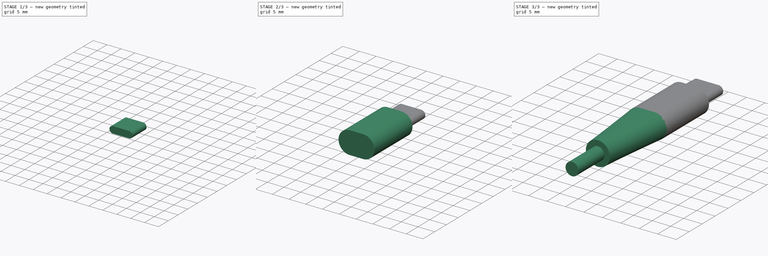
[diagram: build sequence overview — one tinted view per stage of 3, left to right]
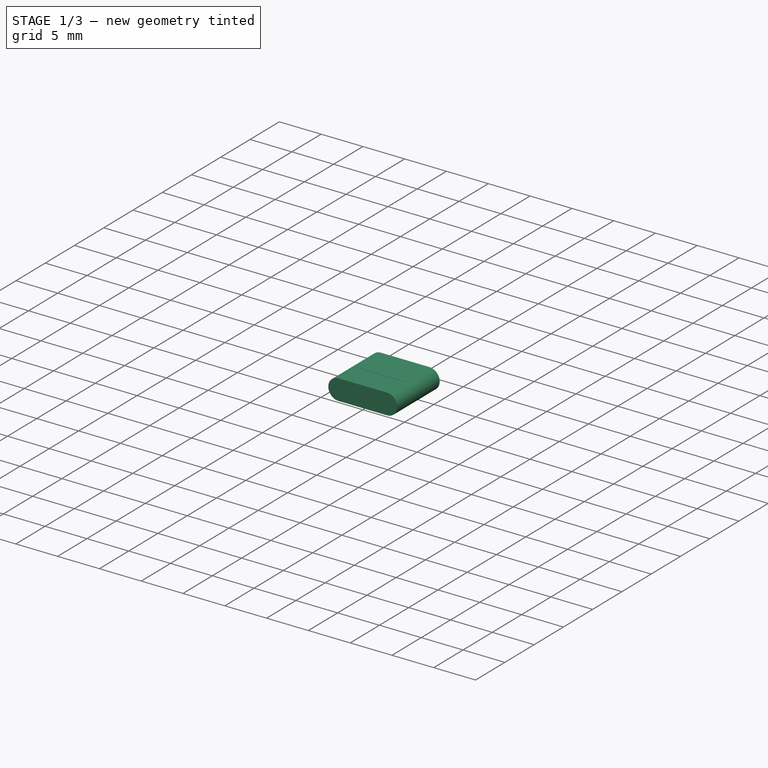
[diagram: stage 1 of 3 — iso view after this stage's code; geometry added in this stage tinted green]
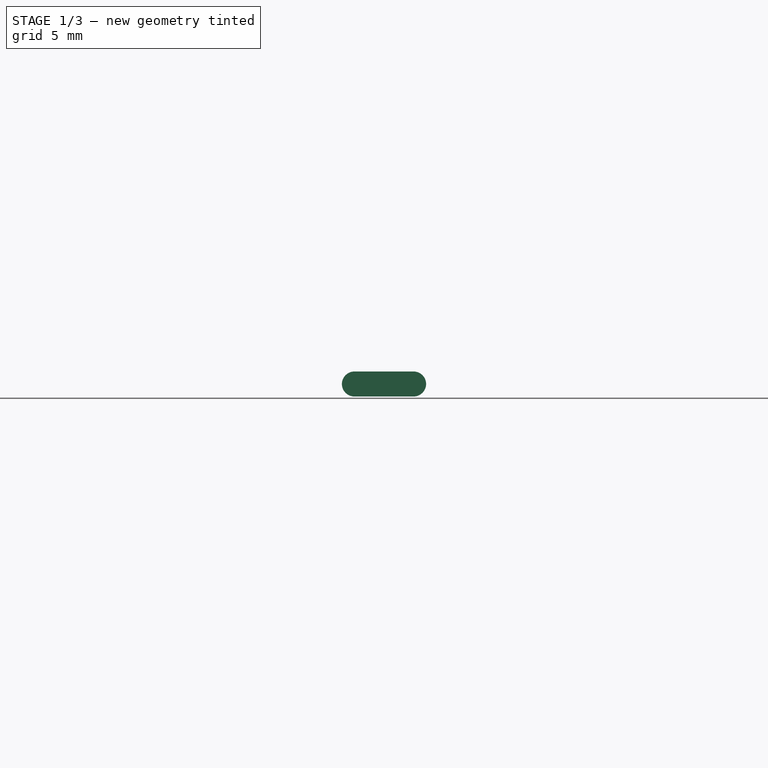
[diagram: stage 1 of 3 — front view after this stage's code; geometry added in this stage tinted green]
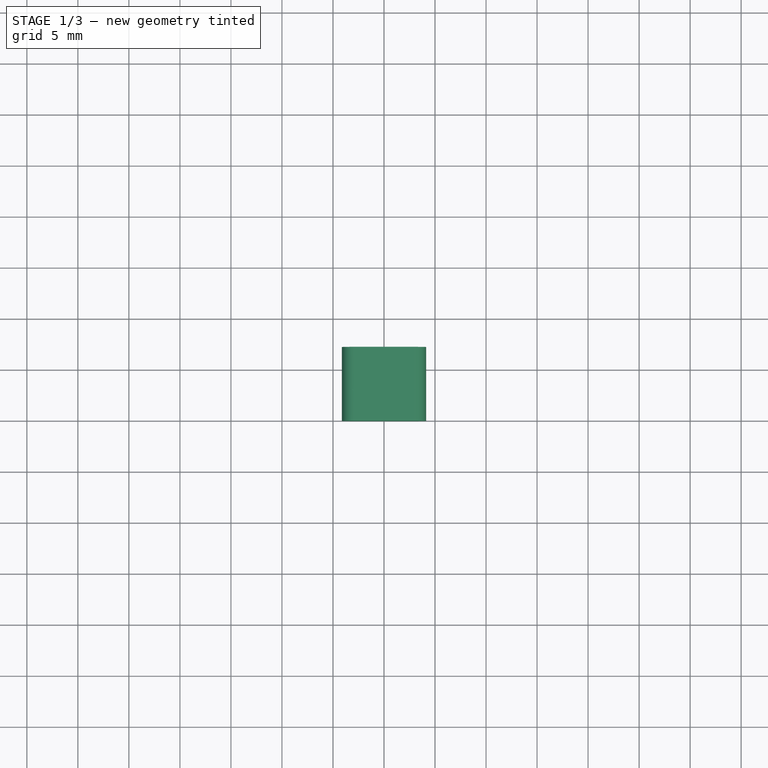
[diagram: stage 1 of 3 — top view after this stage's code; geometry added in this stage tinted green]
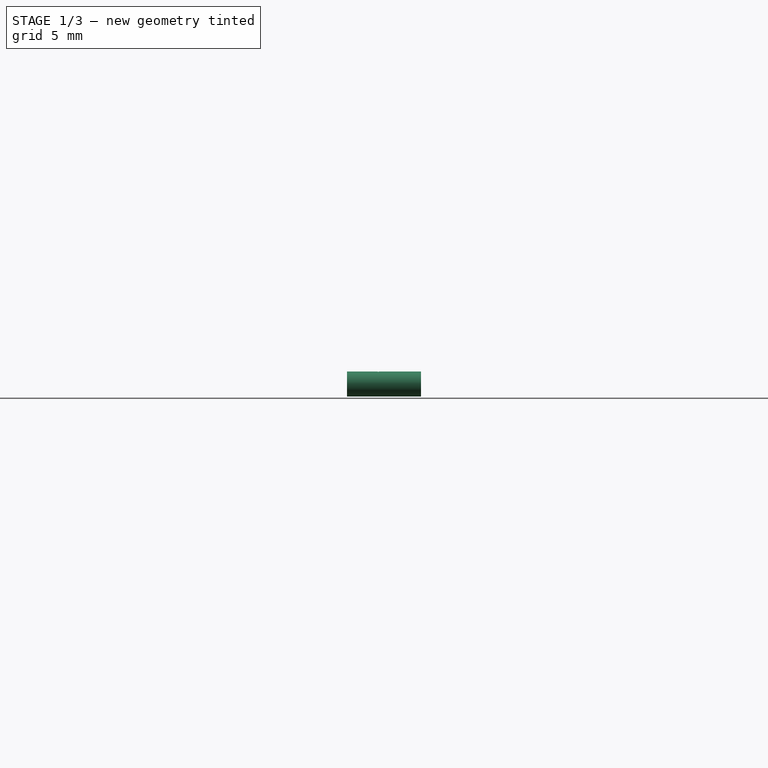
[diagram: stage 1 of 3 — right view after this stage's code; geometry added in this stage tinted green]
FCSTD DOCUMENT  (FreeCAD 0.19R24276 (Git))
Label: Std_USB_C_CableEnd
License: All rights reserved
LicenseURL: http://en.wikipedia.org/wiki/All_rights_reserved
objects: Sketcher::SketchObject×6, PartDesign::Pad×3, PartDesign::Plane×2, PartDesign::Body×2, PartDesign::AdditiveLoft×1, PartDesign::Pocket×1, App::Part×1
note: 20 computed .brp shape members not serialized (recipe doc carries the construction recipe); baked Part::Feature solids carry a one-line shape summary decoded from their .brp

FEATURE [PartDesign::Body] Body  label="Std_USBC_Cable"
  Group = -> [Sketch,Pad,DatumPlane,Sketch001,DatumPlane001,Sketch002,AdditiveLoft,Sketch003,Pad001]
  Origin = -> Origin001
  Tip = -> Pad001
FEATURE [Sketcher::SketchObject] Sketch005
  FullyConstrained = true
  MapMode = 5
  Placement = pos=(0,0,0) rot=(1,0,0;1.5708rad)
  Support = -> [XZ_Plane002]
  sketch-geometry (6):
    g0: ArcOfCircle CenterX=-2.9 CenterY=0 CenterZ=0 NormalX=0 NormalY=0 NormalZ=1 AngleXU=0 Radius=1.225 StartAngle=1.5708 EndAngle=4.71239
    g1: ArcOfCircle CenterX=2.9 CenterY=0 CenterZ=0 NormalX=0 NormalY=0 NormalZ=1 AngleXU=0 Radius=1.225 StartAngle=4.71239 EndAngle=7.85398
    g2: LineSegment StartX=-2.9 StartY=-1.225 StartZ=0 EndX=2.9 EndY=-1.225 EndZ=0
    g3: LineSegment StartX=-2.9 StartY=1.225 StartZ=0 EndX=2.9 EndY=1.225 EndZ=0
    g4: GeomPoint X=-4.125 Y=0 Z=0
    g5: GeomPoint X=4.125 Y=0 Z=0
  constraints (13):
    c: Tangent(g0,g3) = 1.5708
    c: Tangent(g0,g2) = -1.5708
    c: Tangent(g2,g1) = -1.5708
    c: Tangent(g3,g1) = 1.5708
    c: Horizontal(g2)
    c: Equal(g0,g1)
    c: Symmetric(g0,g1,g-1)
    c: DistanceY(g1,g1) = 2.45
    c: PointOnObject(g4,g-1)
    c: PointOnObject(g5,g-1)
    c: PointOnObject(g5,g1)
    c: PointOnObject(g4,g0)
    c: DistanceX(g4,g5) = 8.25
FEATURE [PartDesign::Pad] Pad002
  Direction = (1,1,1)
  Length = 7.25
  Length2 = 100
  Placement = pos=(0,0,0) rot=(1,0,0;1.5708rad)
  Profile = -> Sketch005
  Reversed = true
  Type = 0
FEATURE [Sketcher::SketchObject] Sketch006
  FullyConstrained = true
  MapMode = 5
  Placement = pos=(0,0,0) rot=(0.57735,0.57735,0.57735;2.0944rad)
  Support = -> [YZ_Plane002]
  sketch-geometry (4):
    g0: LineSegment StartX=3 StartY=11.2 StartZ=0 EndX=3.1 EndY=11.2 EndZ=0
    g1: LineSegment StartX=3.1 StartY=11.2 StartZ=0 EndX=3.1 EndY=1.2 EndZ=0
    g2: LineSegment StartX=3.1 StartY=1.2 StartZ=0 EndX=3 EndY=1.2 EndZ=0
    g3: LineSegment StartX=3 StartY=1.2 StartZ=0 EndX=3 EndY=11.2 EndZ=0
  constraints (12):
    c: Coincident(g0,g1)
    c: Coincident(g1,g2)
    c: Coincident(g2,g3)
    c: Coincident(g3,g0)
    c: Horizontal(g0)
    c: Horizontal(g2)
    c: Vertical(g1)
    c: Vertical(g3)
    c: DistanceX(g0,g0) = 0.1
    c: DistanceX(g-1,g2) = 3
    c: DistanceY(g-1,g2) = 1.2
    c: DistanceY(g1,g1) = 10
FEATURE [PartDesign::Pocket] Pocket
  BaseFeature = -> Pad002
  Length = 5
  Length2 = 100
  Midplane = true
  Placement = pos=(0,0,0) rot=(1,0,0;1.5708rad)
  Profile = -> Sketch006
  Type = 1
FEATURE [PartDesign::Body] Body001  label="Std_USBC_Connector"
  Group = -> [Sketch005,Pad002,Sketch006,Pocket]
  Origin = -> Origin002
  Tip = -> Pocket
FEATURE [App::Part] Part  label="Part_Std_USBC_Cable"
  Group = -> [Body,Body001]
  Origin = -> Origin
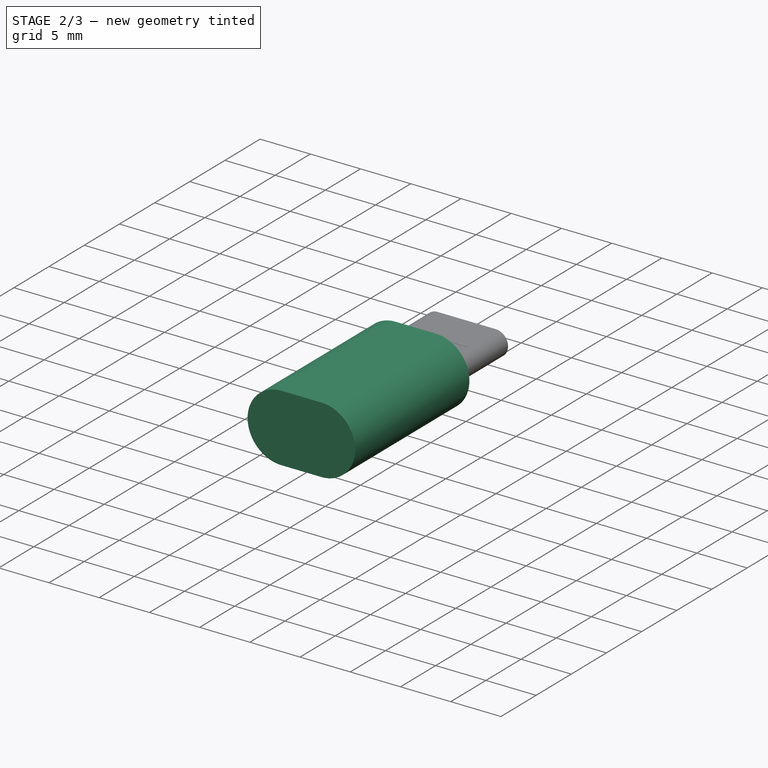
[diagram: stage 2 of 3 — iso view after this stage's code; geometry added in this stage tinted green]
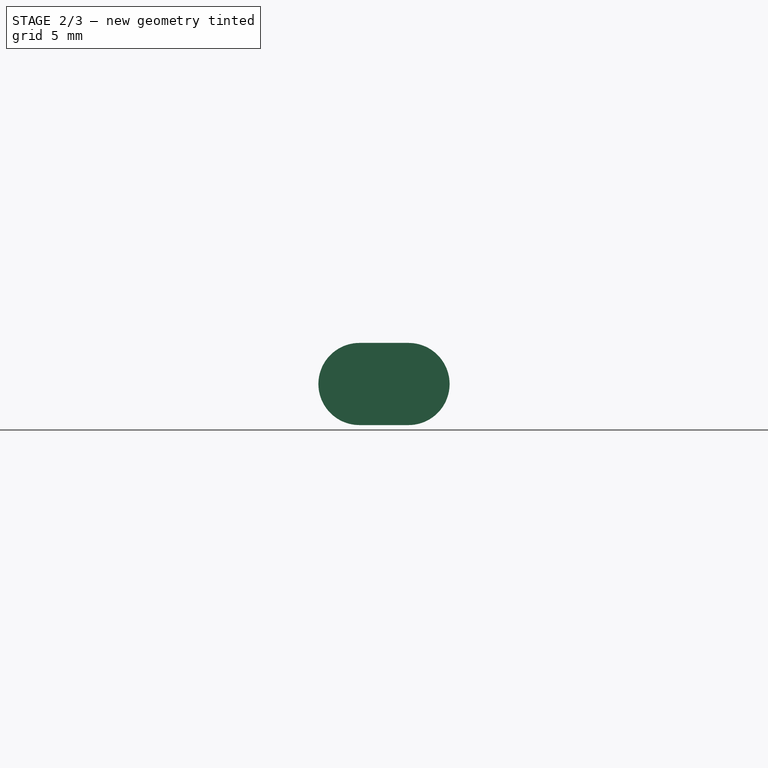
[diagram: stage 2 of 3 — front view after this stage's code; geometry added in this stage tinted green]
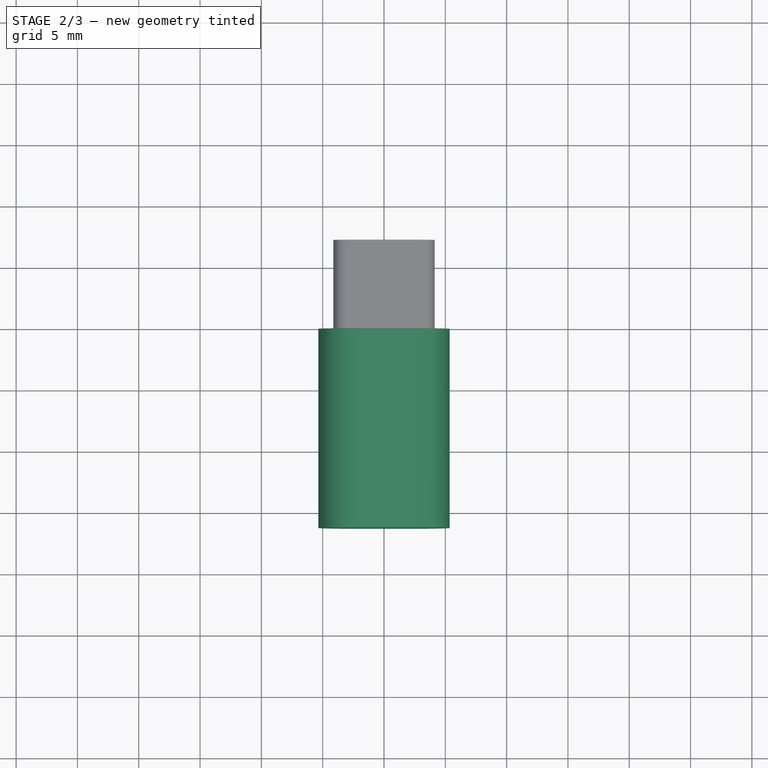
[diagram: stage 2 of 3 — top view after this stage's code; geometry added in this stage tinted green]
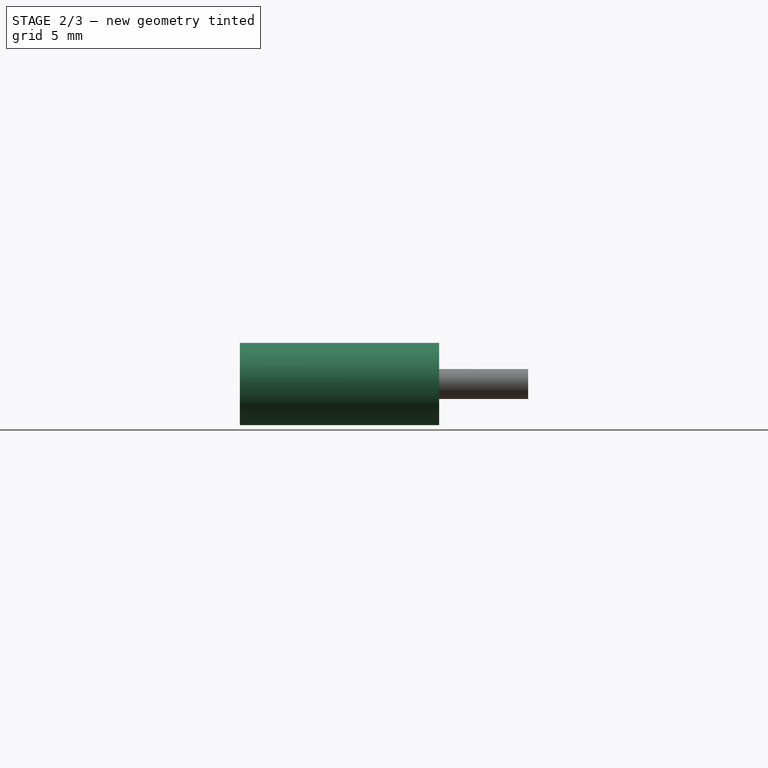
[diagram: stage 2 of 3 — right view after this stage's code; geometry added in this stage tinted green]
FEATURE [Sketcher::SketchObject] Sketch
  FullyConstrained = true
  MapMode = 5
  Placement = pos=(0,0,0) rot=(1,0,0;1.5708rad)
  Support = -> [XZ_Plane001]
  sketch-geometry (6):
    g0: ArcOfCircle CenterX=-2 CenterY=0 CenterZ=0 NormalX=0 NormalY=0 NormalZ=1 AngleXU=0 Radius=3.35 StartAngle=1.5708 EndAngle=4.71239
    g1: ArcOfCircle CenterX=2 CenterY=0 CenterZ=0 NormalX=0 NormalY=0 NormalZ=1 AngleXU=0 Radius=3.35 StartAngle=4.71239 EndAngle=7.85398
    g2: LineSegment StartX=-2 StartY=-3.35 StartZ=0 EndX=2 EndY=-3.35 EndZ=0
    g3: LineSegment StartX=-2 StartY=3.35 StartZ=0 EndX=2 EndY=3.35 EndZ=0
    g4: GeomPoint X=-5.35 Y=0 Z=0
    g5: GeomPoint X=5.35 Y=0 Z=0
  constraints (13):
    c: Tangent(g0,g3) = 1.5708
    c: Tangent(g0,g2) = -1.5708
    c: Tangent(g2,g1) = -1.5708
    c: Tangent(g3,g1) = 1.5708
    c: Horizontal(g2)
    c: Equal(g0,g1)
    c: Symmetric(g0,g1,g-1)
    c: PointOnObject(g4,g-1)
    c: PointOnObject(g5,g-1)
    c: PointOnObject(g5,g1)
    c: PointOnObject(g4,g0)
    c: DistanceY(g1,g1) = 6.7
    c: DistanceX(g4,g5) = 10.7
FEATURE [PartDesign::Pad] Pad
  Direction = (1,1,1)
  Length = 16.25
  Length2 = 100
  Placement = pos=(0,0,0) rot=(1,0,0;1.5708rad)
  Profile = -> Sketch
  Type = 0
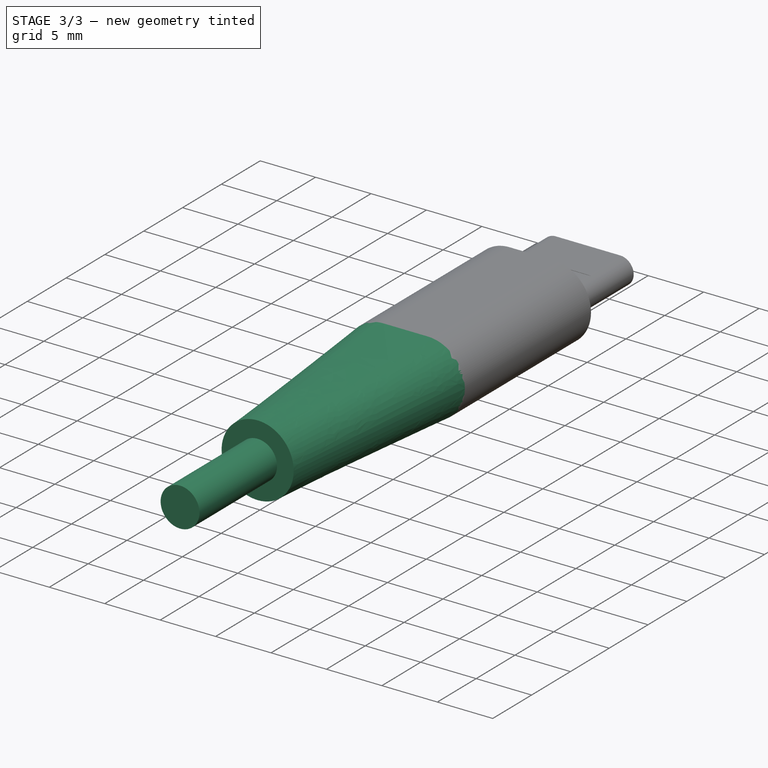
[diagram: stage 3 of 3 — iso view after this stage's code; geometry added in this stage tinted green]
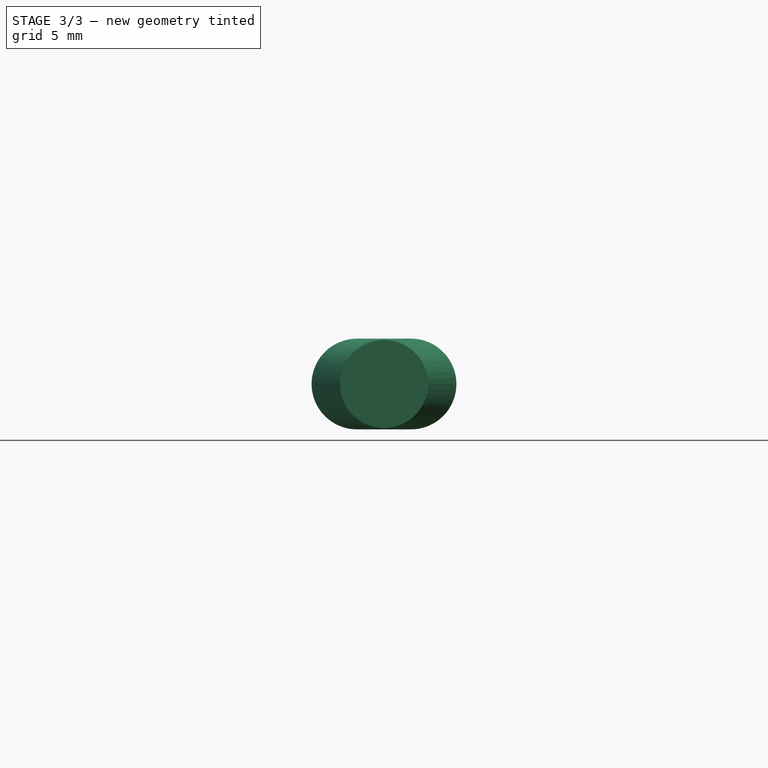
[diagram: stage 3 of 3 — front view after this stage's code; geometry added in this stage tinted green]
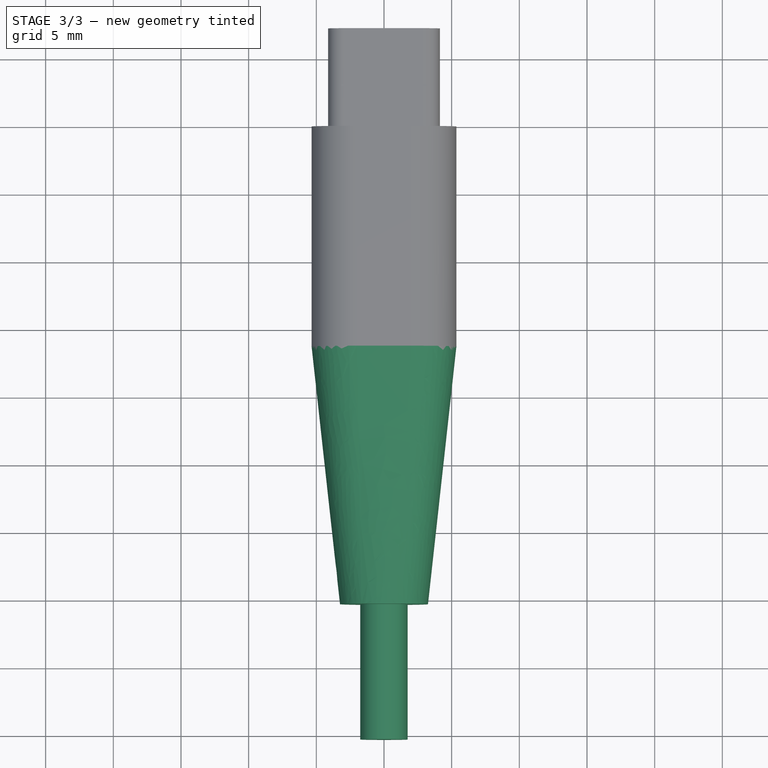
[diagram: stage 3 of 3 — top view after this stage's code; geometry added in this stage tinted green]
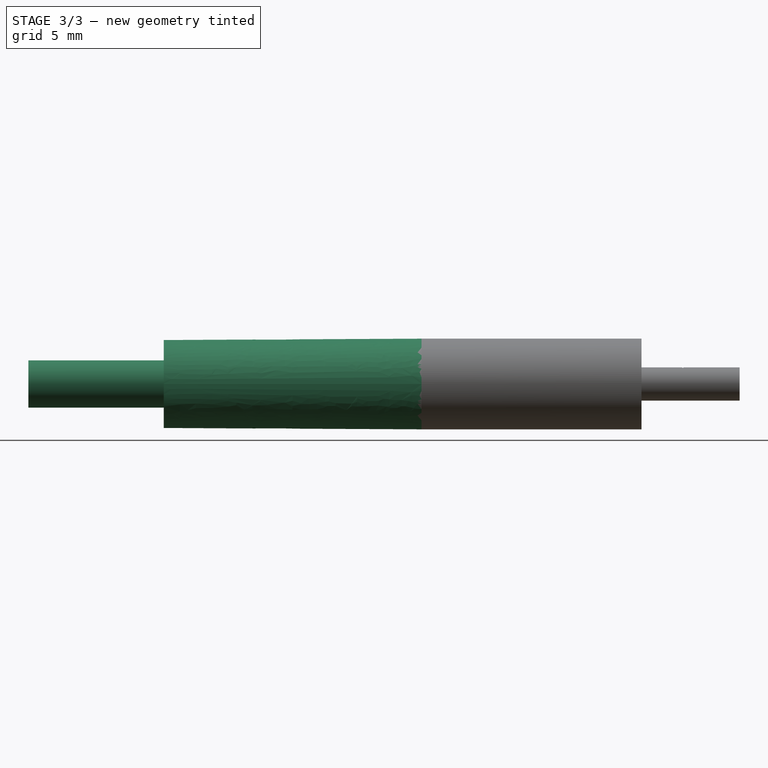
[diagram: stage 3 of 3 — right view after this stage's code; geometry added in this stage tinted green]
FEATURE [PartDesign::Plane] DatumPlane
  AttachmentOffset = pos=(0,0,16.25) rot=(0,0,1;0rad)
  Length = 60
  MapMode = 5
  Placement = pos=(0,-16.25,3.6e-15) rot=(1,0,0;1.5708rad)
  ResizeMode = 0
  Support = -> [XZ_Plane001]
  Width = 60
FEATURE [Sketcher::SketchObject] Sketch001
  FullyConstrained = true
  MapMode = 5
  Placement = pos=(0,-16.25,3.6e-15) rot=(1,0,0;1.5708rad)
  Support = -> [DatumPlane]
  sketch-geometry (6):
    g0: ArcOfCircle CenterX=-2 CenterY=0 CenterZ=0 NormalX=0 NormalY=0 NormalZ=1 AngleXU=0 Radius=3.35 StartAngle=1.5708 EndAngle=4.71239
    g1: ArcOfCircle CenterX=2 CenterY=0 CenterZ=0 NormalX=0 NormalY=0 NormalZ=1 AngleXU=0 Radius=3.35 StartAngle=4.71239 EndAngle=7.85398
    g2: LineSegment StartX=-2 StartY=-3.35 StartZ=0 EndX=2 EndY=-3.35 EndZ=0
    g3: LineSegment StartX=-2 StartY=3.35 StartZ=0 EndX=2 EndY=3.35 EndZ=0
    g4: GeomPoint X=-5.35 Y=0 Z=0
    g5: GeomPoint X=5.35 Y=0 Z=0
  constraints (13):
    c: Tangent(g0,g3) = 1.5708
    c: Tangent(g0,g2) = -1.5708
    c: Tangent(g2,g1) = -1.5708
    c: Tangent(g3,g1) = 1.5708
    c: Horizontal(g2)
    c: Equal(g0,g1)
    c: Symmetric(g0,g1,g-1)
    c: PointOnObject(g4,g-1)
    c: PointOnObject(g5,g-1)
    c: PointOnObject(g5,g1)
    c: PointOnObject(g4,g0)
    c: DistanceY(g1,g1) = 6.7
    c: DistanceX(g4,g5) = 10.7
FEATURE [PartDesign::Plane] DatumPlane001
  AttachmentOffset = pos=(0,0,35.3) rot=(0,0,1;0rad)
  Length = 60
  MapMode = 5
  Placement = pos=(0,-35.3,7.8e-15) rot=(1,0,0;1.5708rad)
  ResizeMode = 0
  Support = -> [XZ_Plane001]
  Width = 60
FEATURE [Sketcher::SketchObject] Sketch002
  FullyConstrained = true
  MapMode = 5
  Placement = pos=(0,-35.3,7.8e-15) rot=(1,0,0;1.5708rad)
  Support = -> [DatumPlane001]
  sketch-geometry (1):
    g0: Circle CenterX=0 CenterY=0 CenterZ=0 NormalX=0 NormalY=0 NormalZ=1 AngleXU=0 Radius=3.25
  constraints (2):
    c: Coincident(g0,g-1)
    c: Diameter(g0) = 6.5
FEATURE [PartDesign::AdditiveLoft] AdditiveLoft
  BaseFeature = -> Pad
  Closed = false
  Placement = pos=(0,0,0) rot=(1,0,0;1.5708rad)
  Profile = -> Sketch001
  Ruled = false
  Sections = -> [Sketch002]
FEATURE [Sketcher::SketchObject] Sketch003
  FullyConstrained = true
  MapMode = 5
  Placement = pos=(0,-35.3,7.8e-15) rot=(1,0,0;1.5708rad)
  Support = -> [DatumPlane001]
  sketch-geometry (1):
    g0: Circle CenterX=0 CenterY=0 CenterZ=0 NormalX=0 NormalY=0 NormalZ=1 AngleXU=0 Radius=1.75
  constraints (2):
    c: Coincident(g0,g-1)
    c: Diameter(g0) = 3.5
FEATURE [PartDesign::Pad] Pad001
  BaseFeature = -> AdditiveLoft
  Direction = (1,1,1)
  Length = 10
  Length2 = 100
  Placement = pos=(0,0,0) rot=(1,0,0;1.5708rad)
  Profile = -> Sketch003
  Type = 0
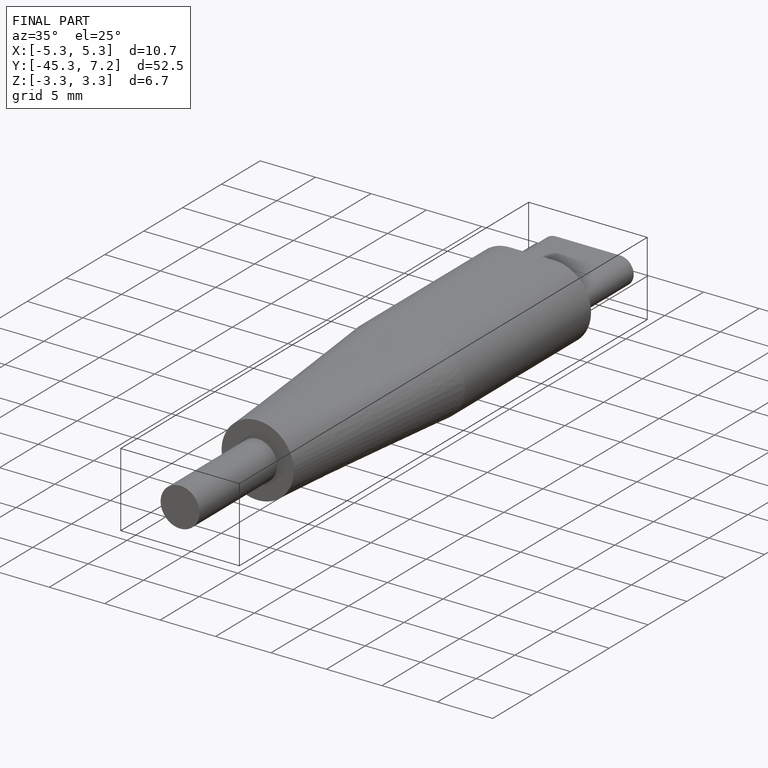
[diagram: finished part — iso view with bounding-box wireframe]
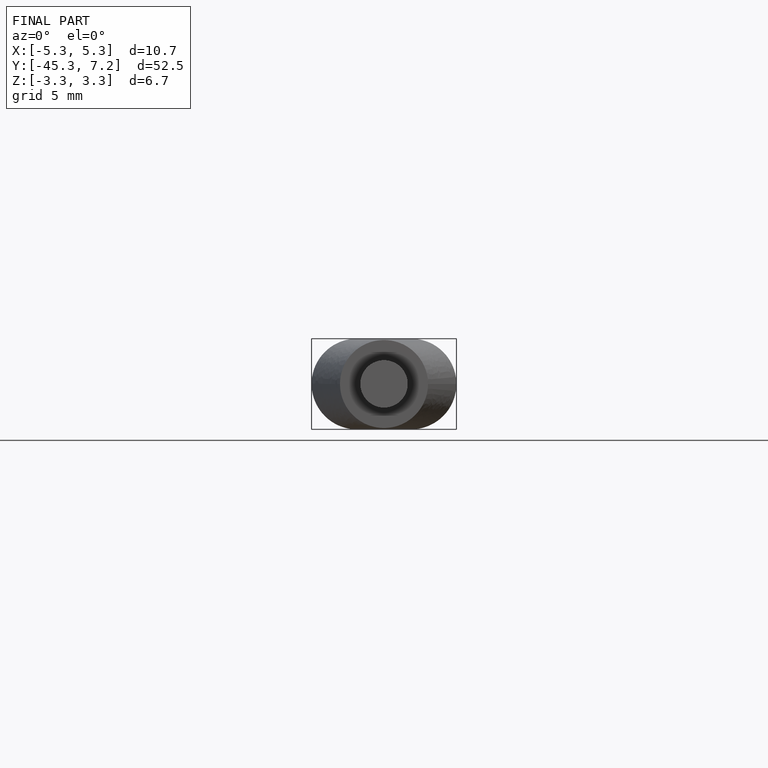
[diagram: finished part — front view with bounding-box wireframe]
